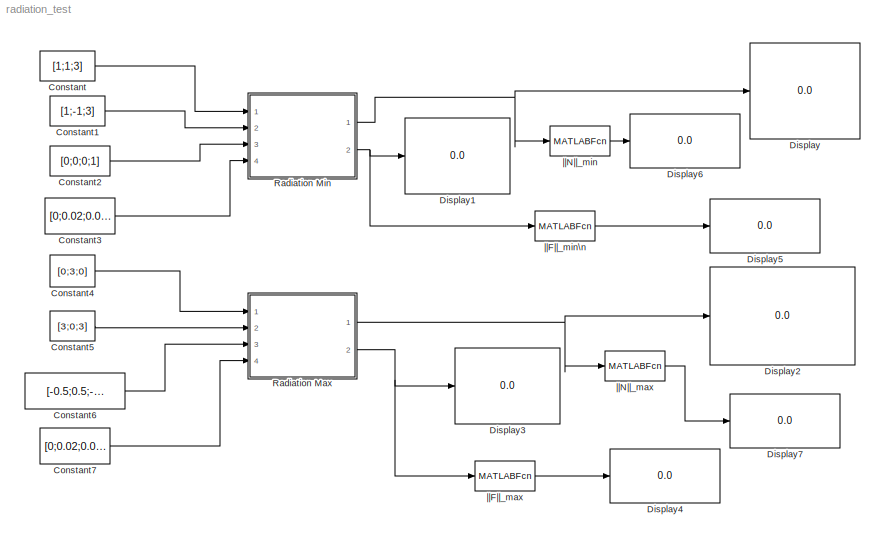
MODEL radiation_test
KIND model
BLOCK [Constant] Constant
  Value = [1;1;3]
BLOCK [Constant] Constant1
  Value = [1;-1;3]
BLOCK [Constant] Constant2
  Value = [0;0;0;1]
BLOCK [Constant] Constant3
  Value = [0;0.02;0.02]
BLOCK [Constant] Constant4
  Value = [0;3;0]
BLOCK [Constant] Constant5
  Value = [3;0;3]
BLOCK [Constant] Constant6
  Value = [-0.5;0.5;-0.5;0.5]
BLOCK [Constant] Constant7
  Value = [0;0.02;0.02]
BLOCK [Display] Display
  Decimation = 1
  Ports = [1]
BLOCK [Display] Display1
  Decimation = 1
  Ports = [1]
BLOCK [Display] Display2
  Decimation = 1
  Ports = [1]
BLOCK [Display] Display3
  Decimation = 1
  Ports = [1]
BLOCK [Display] Display4
  Decimation = 1
  Ports = [1]
BLOCK [Display] Display5
  Decimation = 1
  Ports = [1]
BLOCK [Display] Display6
  Decimation = 1
  Ports = [1]
BLOCK [Display] Display7
  Decimation = 1
  Ports = [1]
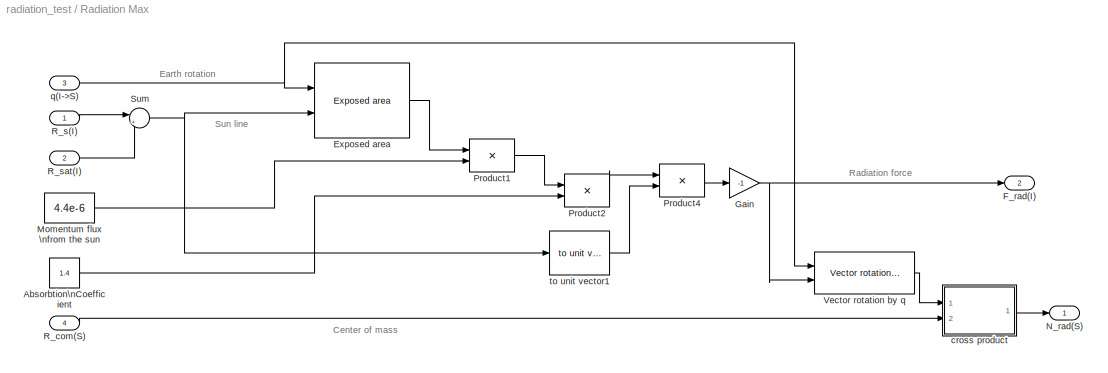
BLOCK [SubSystem] Radiation Max
  AncestorBlock = radiation_lib/Radiation (I)
  MinAlgLoopOccurrences = off
  Ports = [4, 2]
  RTWSystemCode = Auto
  TreatAsAtomicUnit = off
BLOCK [Constant] Radiation Max/Absorbtion\nCoefficient
  Value = 1.4
BLOCK [Reference] Radiation Max/Exposed area  REF=exposed_area_lib/Exposed area
  Ports = [2, 1]
  ShowPortLabels = on
  SourceBlock = exposed_area_lib/Exposed area
  SourceType = SubSystem
BLOCK [Outport] Radiation Max/F_rad(I)
  BusOutputAsStruct = off
  IconDisplay = Port number
  Port = 2
BLOCK [Gain] Radiation Max/Gain
  Gain = -1
BLOCK [Constant] Radiation Max/Momentum flux \nfrom the sun
  Value = 4.4e-6
BLOCK [Outport] Radiation Max/N_rad(S)
  BusOutputAsStruct = off
  IconDisplay = Port number
BLOCK [Product] Radiation Max/Product1
  InputSameDT = off
  Ports = [2, 1]
  RndMeth = Floor
BLOCK [Product] Radiation Max/Product2
  InputSameDT = off
  Ports = [2, 1]
  RndMeth = Floor
BLOCK [Product] Radiation Max/Product4
  InputSameDT = off
  Ports = [2, 1]
  RndMeth = Floor
BLOCK [Inport] Radiation Max/R_com(S)
  IconDisplay = Port number
  LatchInput = off
  Port = 4
BLOCK [Inport] Radiation Max/R_s(I)
  IconDisplay = Port number
  LatchInput = off
  Port = 1
BLOCK [Inport] Radiation Max/R_sat(I)
  IconDisplay = Port number
  LatchInput = off
  Port = 2
BLOCK [Sum] Radiation Max/Sum
  IconShape = round
  InputSameDT = off
  Inputs = |+-
  OutDataTypeMode = Inherit via internal rule
  Ports = [2, 1]
BLOCK [Reference] Radiation Max/Vector rotation by q  REF=Accessories_lib/Math utilities/Vector operations/Vector rotation by q
  Ports = [2, 1]
  ShowPortLabels = on
  SourceBlock = Accessories_lib/Math utilities/Vector operations/Vector rotation by q
  SourceType = SubSystem
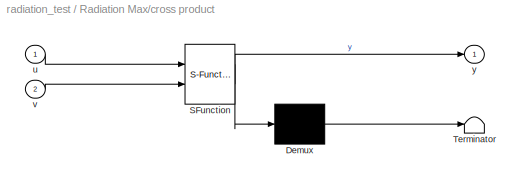
BLOCK [SubSystem] Radiation Max/cross product
  MaskDescription = Embedded MATLAB block
  MaskDisplay = disp('crossproduct');
  MaskIconFrame = on
  MaskIconOpaque = off
  MaskIconRotate = none
  MaskIconUnits = autoscale
  MaskSelfModifiable = on
  MaskType = Stateflow
  MinAlgLoopOccurrences = off
  Ports = [2, 1]
  RTWSystemCode = Auto
  TreatAsAtomicUnit = off
BLOCK [Demux] Radiation Max/cross product/ Demux 
  Outputs = 1
  Ports = [1, 1]
BLOCK [S-Function] Radiation Max/cross product/ SFunction 
  FunctionName = sf_sfun
  PortCounts = [2 2]
  Ports = [2, 2]
  Tag = Stateflow S-Function radiation_test 2
BLOCK [Terminator] Radiation Max/cross product/ Terminator 
BLOCK [Inport] Radiation Max/cross product/u
  IconDisplay = Port number
  LatchInput = off
  Port = 1
BLOCK [Inport] Radiation Max/cross product/v
  IconDisplay = Port number
  LatchInput = off
  Port = 2
BLOCK [Outport] Radiation Max/cross product/y
  BusOutputAsStruct = off
  IconDisplay = Port number
BLOCK [Inport] Radiation Max/q(I->S)
  IconDisplay = Port number
  LatchInput = off
  Port = 3
BLOCK [Reference] Radiation Max/to unit vector1  REF=Accessories_lib/Math utilities/Vector operations/to unit vector
  Ports = [1, 1]
  ShowPortLabels = on
  SourceBlock = Accessories_lib/Math utilities/Vector operations/to unit vector
  SourceType = SubSystem
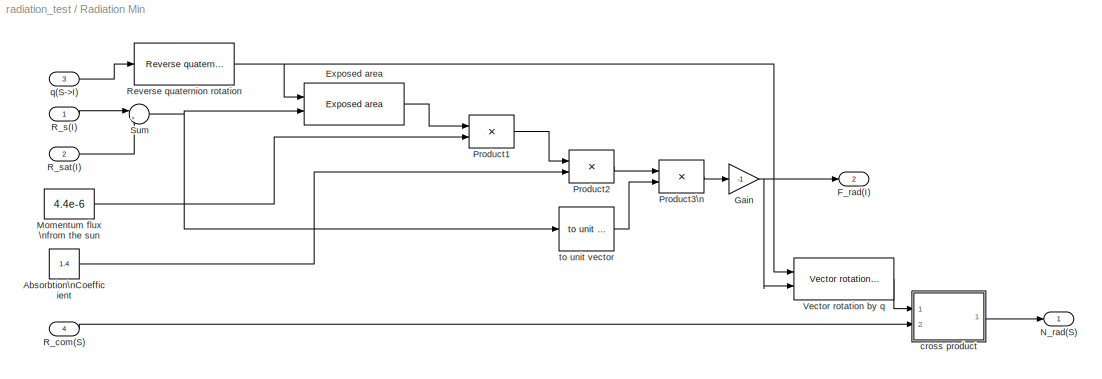
BLOCK [SubSystem] Radiation Min
  AncestorBlock = radiation_lib/Radiation (I)
  MinAlgLoopOccurrences = off
  Ports = [4, 2]
  RTWSystemCode = Auto
  TreatAsAtomicUnit = off
BLOCK [Constant] Radiation Min/Absorbtion\nCoefficient
  Value = 1.4
BLOCK [Reference] Radiation Min/Exposed area  REF=exposed_area_lib/Exposed area
  Ports = [2, 1]
  ShowPortLabels = on
  SourceBlock = exposed_area_lib/Exposed area
  SourceType = SubSystem
BLOCK [Outport] Radiation Min/F_rad(I)
  BusOutputAsStruct = off
  IconDisplay = Port number
  Port = 2
BLOCK [Gain] Radiation Min/Gain
  Gain = -1
BLOCK [Constant] Radiation Min/Momentum flux \nfrom the sun
  Value = 4.4e-6
BLOCK [Outport] Radiation Min/N_rad(S)
  BusOutputAsStruct = off
  IconDisplay = Port number
BLOCK [Product] Radiation Min/Product1
  InputSameDT = off
  Ports = [2, 1]
  RndMeth = Floor
BLOCK [Product] Radiation Min/Product2
  InputSameDT = off
  Ports = [2, 1]
  RndMeth = Floor
BLOCK [Product] Radiation Min/Product3\n
  InputSameDT = off
  Ports = [2, 1]
  RndMeth = Floor
BLOCK [Inport] Radiation Min/R_com(S)
  IconDisplay = Port number
  LatchInput = off
  Port = 4
BLOCK [Inport] Radiation Min/R_s(I)
  IconDisplay = Port number
  LatchInput = off
  Port = 1
BLOCK [Inport] Radiation Min/R_sat(I)
  IconDisplay = Port number
  LatchInput = off
  Port = 2
BLOCK [Reference] Radiation Min/Reverse quaternion rotation  REF=Accessories_lib/Math utilities/Quaternion operations/Reverse quaternion rotation
  Ports = [1, 1]
  ShowPortLabels = on
  SourceBlock = Accessories_lib/Math utilities/Quaternion operations/Reverse quaternion rotation
  SourceType = SubSystem
BLOCK [Sum] Radiation Min/Sum
  IconShape = round
  InputSameDT = off
  Inputs = |+-
  OutDataTypeMode = Inherit via internal rule
  Ports = [2, 1]
BLOCK [Reference] Radiation Min/Vector rotation by q  REF=Accessories_lib/Math utilities/Vector operations/Vector rotation by q
  Ports = [2, 1]
  ShowPortLabels = on
  SourceBlock = Accessories_lib/Math utilities/Vector operations/Vector rotation by q
  SourceType = SubSystem
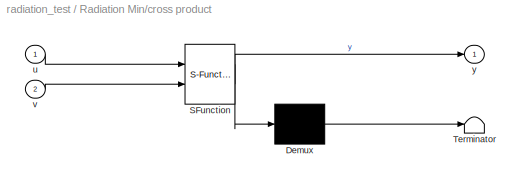
BLOCK [SubSystem] Radiation Min/cross product
  MaskDescription = Embedded MATLAB block
  MaskDisplay = disp('crossproduct');
  MaskIconFrame = on
  MaskIconOpaque = off
  MaskIconRotate = none
  MaskIconUnits = autoscale
  MaskSelfModifiable = on
  MaskType = Stateflow
  MinAlgLoopOccurrences = off
  Ports = [2, 1]
  RTWSystemCode = Auto
  TreatAsAtomicUnit = off
BLOCK [Demux] Radiation Min/cross product/ Demux 
  Outputs = 1
  Ports = [1, 1]
BLOCK [S-Function] Radiation Min/cross product/ SFunction 
  FunctionName = sf_sfun
  PortCounts = [2 2]
  Ports = [2, 2]
  Tag = Stateflow S-Function radiation_test 1
BLOCK [Terminator] Radiation Min/cross product/ Terminator 
BLOCK [Inport] Radiation Min/cross product/u
  IconDisplay = Port number
  LatchInput = off
  Port = 1
BLOCK [Inport] Radiation Min/cross product/v
  IconDisplay = Port number
  LatchInput = off
  Port = 2
BLOCK [Outport] Radiation Min/cross product/y
  BusOutputAsStruct = off
  IconDisplay = Port number
BLOCK [Inport] Radiation Min/q(S->I)
  IconDisplay = Port number
  LatchInput = off
  Port = 3
BLOCK [Reference] Radiation Min/to unit vector  REF=Accessories_lib/Math utilities/Vector operations/to unit vector
  Ports = [1, 1]
  ShowPortLabels = on
  SourceBlock = Accessories_lib/Math utilities/Vector operations/to unit vector
  SourceType = SubSystem
BLOCK [MATLABFcn] ||F||_max
  MATLABFcn = norm
BLOCK [MATLABFcn] ||F||_min\n
  MATLABFcn = norm
BLOCK [MATLABFcn] ||N||_max
  MATLABFcn = norm
BLOCK [MATLABFcn] ||N||_min
  MATLABFcn = norm
ANNOTATION Radiation Max: Center of mass
ANNOTATION Radiation Max: Earth rotation
ANNOTATION Radiation Max: Radiation force
ANNOTATION Radiation Max: Sun line
LINE Constant1:1 -> Radiation Min:2
LINE Constant2:1 -> Radiation Min:3
LINE Constant3:1 -> Radiation Min:4
LINE Constant4:1 -> Radiation Max:1
LINE Constant5:1 -> Radiation Max:2
LINE Constant6:1 -> Radiation Max:3
LINE Constant7:1 -> Radiation Max:4
LINE Constant:1 -> Radiation Min:1
LINE Radiation Max/Absorbtion\nCoefficient:1 -> Radiation Max/Product2:2
LINE Radiation Max/Exposed area:1 -> Radiation Max/Product1:1
NET Radiation Max/Gain:1 -> Radiation Max/F_rad(I):1, Radiation Max/Vector rotation by q:2
LINE Radiation Max/Momentum flux \nfrom the sun:1 -> Radiation Max/Product1:2
LINE Radiation Max/Product1:1 -> Radiation Max/Product2:1
LINE Radiation Max/Product2:1 -> Radiation Max/Product4:1
LINE Radiation Max/Product4:1 -> Radiation Max/Gain:1
LINE Radiation Max/R_com(S):1 -> Radiation Max/cross product:2
LINE Radiation Max/R_s(I):1 -> Radiation Max/Sum:1
LINE Radiation Max/R_sat(I):1 -> Radiation Max/Sum:2
NET Radiation Max/Sum:1 -> Radiation Max/Exposed area:2, Radiation Max/to unit vector1:1
LINE Radiation Max/Vector rotation by q:1 -> Radiation Max/cross product:1
LINE Radiation Max/cross product/ Demux :1 -> Radiation Max/cross product/ Terminator :1
LINE Radiation Max/cross product/ SFunction :1 -> Radiation Max/cross product/ Demux :1
LINE Radiation Max/cross product/ SFunction :2 -> Radiation Max/cross product/y:1
LINE Radiation Max/cross product/u:1 -> Radiation Max/cross product/ SFunction :1
LINE Radiation Max/cross product/v:1 -> Radiation Max/cross product/ SFunction :2
LINE Radiation Max/cross product:1 -> Radiation Max/N_rad(S):1
NET Radiation Max/q(I->S):1 -> Radiation Max/Exposed area:1, Radiation Max/Vector rotation by q:1
LINE Radiation Max/to unit vector1:1 -> Radiation Max/Product4:2
NET Radiation Max:1 -> Display2:1, ||N||_max:1
NET Radiation Max:2 -> Display3:1, ||F||_max:1
LINE Radiation Min/Absorbtion\nCoefficient:1 -> Radiation Min/Product2:2
LINE Radiation Min/Exposed area:1 -> Radiation Min/Product1:1
NET Radiation Min/Gain:1 -> Radiation Min/F_rad(I):1, Radiation Min/Vector rotation by q:2
LINE Radiation Min/Momentum flux \nfrom the sun:1 -> Radiation Min/Product1:2
LINE Radiation Min/Product1:1 -> Radiation Min/Product2:1
LINE Radiation Min/Product2:1 -> Radiation Min/Product3\n:1
LINE Radiation Min/Product3\n:1 -> Radiation Min/Gain:1
LINE Radiation Min/R_com(S):1 -> Radiation Min/cross product:2
LINE Radiation Min/R_s(I):1 -> Radiation Min/Sum:1
LINE Radiation Min/R_sat(I):1 -> Radiation Min/Sum:2
NET Radiation Min/Reverse quaternion rotation:1 -> Radiation Min/Exposed area:1, Radiation Min/Vector rotation by q:1
NET Radiation Min/Sum:1 -> Radiation Min/Exposed area:2, Radiation Min/to unit vector:1
LINE Radiation Min/Vector rotation by q:1 -> Radiation Min/cross product:1
LINE Radiation Min/cross product/ Demux :1 -> Radiation Min/cross product/ Terminator :1
LINE Radiation Min/cross product/ SFunction :1 -> Radiation Min/cross product/ Demux :1
LINE Radiation Min/cross product/ SFunction :2 -> Radiation Min/cross product/y:1
LINE Radiation Min/cross product/u:1 -> Radiation Min/cross product/ SFunction :1
LINE Radiation Min/cross product/v:1 -> Radiation Min/cross product/ SFunction :2
LINE Radiation Min/cross product:1 -> Radiation Min/N_rad(S):1
LINE Radiation Min/q(S->I):1 -> Radiation Min/Reverse quaternion rotation:1
LINE Radiation Min/to unit vector:1 -> Radiation Min/Product3\n:2
NET Radiation Min:1 -> Display:1, ||N||_min:1
NET Radiation Min:2 -> Display1:1, ||F||_min\n:1
LINE ||F||_max:1 -> Display4:1
LINE ||F||_min\n:1 -> Display5:1
LINE ||N||_max:1 -> Display7:1
LINE ||N||_min:1 -> Display6:1
note: NET lines group one-source signal fan-out (src -> all destinations, sorted); 1:1 wires keep LINE
CHART Radiation Min/cross product states=1 transitions=1
  STATE_LABEL 'eML_blk_kernel()'
CHART Radiation Max/cross product states=1 transitions=1
  STATE_LABEL 'eML_blk_kernel()'
